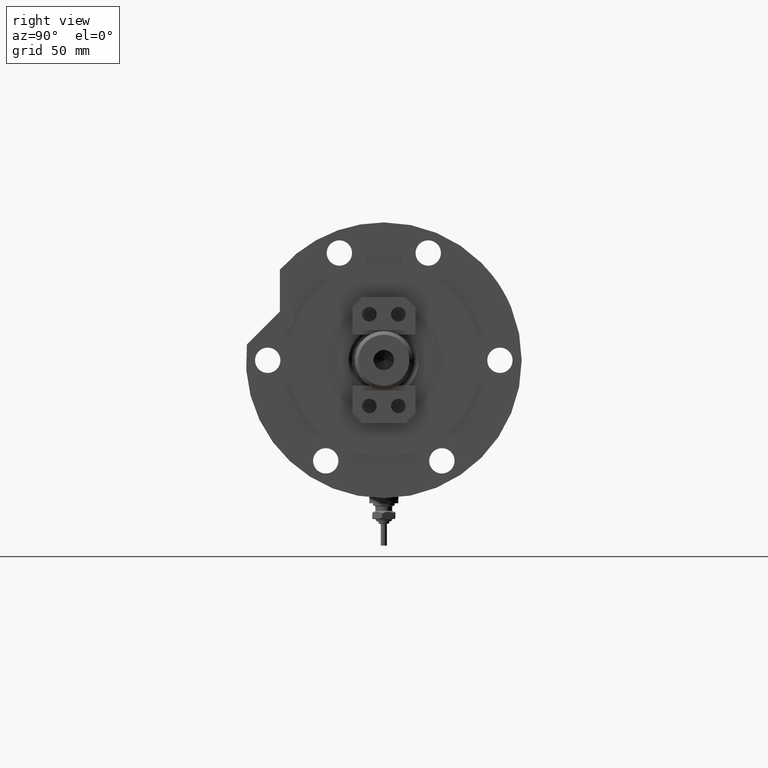
[diagram: clean part render]
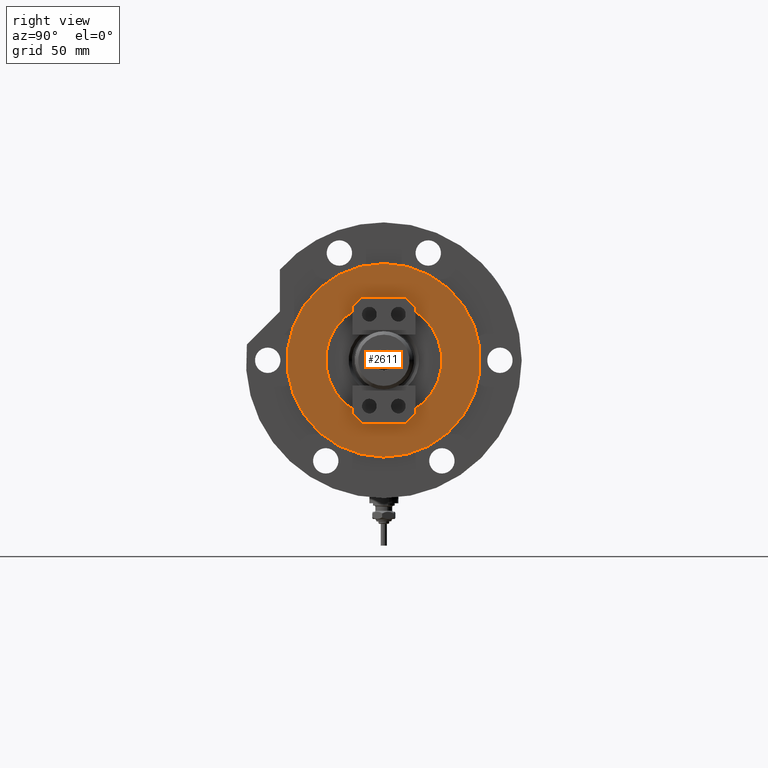
[diagram: same view with one face highlighted and labeled with its STEP entity id]
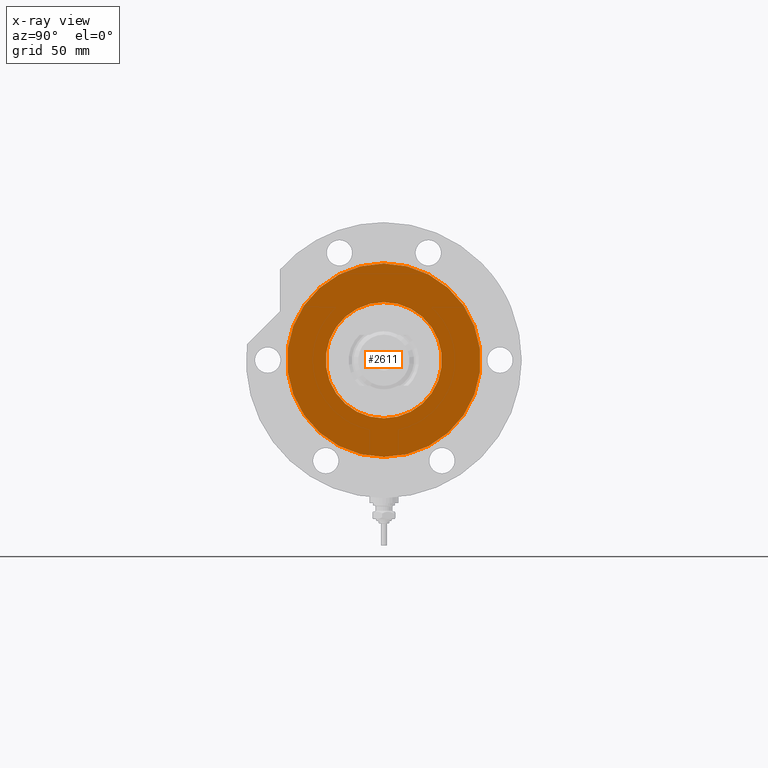
[diagram: x-ray of the same camera — body ghosted, the highlighted face saturated]
A machine part, right view. The second image highlights one B-rep face of the part: STEP entity #2611.
The next image is the same camera in x-ray: the body ghosted, the highlighted face saturated — about 0% of this face is hidden behind the body in this view.
In plain terms, the highlighted planar face has unit normal (1, 0, -0).
Its self-contained STEP definition (entity closure, byte-faithful):
#87 = CARTESIAN_POINT ( 'NONE',  ( 24.00000000000000355, 0.000000000000000000, 20.99999999999999645 ) ) ;
#97 = ORIENTED_EDGE ( 'NONE', *, *, #4778, .T. ) ;
#166 = FACE_OUTER_BOUND ( 'NONE', #6516, .T. ) ;
#261 = CIRCLE ( 'NONE', #2416, 24.00000000000000355 ) ;
#277 = DIRECTION ( 'NONE',  ( 1.000000000000000000, 0.000000000000000000, 0.000000000000000000 ) ) ;
#535 = DIRECTION ( 'NONE',  ( 1.000000000000000000, 0.000000000000000000, -0.000000000000000000 ) ) ;
#669 = AXIS2_PLACEMENT_3D ( 'NONE', #3022, #1764, #535 ) ;
#754 = CARTESIAN_POINT ( 'NONE',  ( 40.00000000000000000, 4.898587196589413026E-15, 20.99999999999999645 ) ) ;
#1043 = DIRECTION ( 'NONE',  ( 1.000000000000000000, 0.000000000000000000, 0.000000000000000000 ) ) ;
#1063 = CIRCLE ( 'NONE', #5730, 40.00000000000000000 ) ;
#1093 = EDGE_LOOP ( 'NONE', ( #8198, #6956 ) ) ;
#1122 = CARTESIAN_POINT ( 'NONE',  ( 0.000000000000000000, 0.000000000000000000, 20.99999999999999645 ) ) ;
#1486 = CIRCLE ( 'NONE', #7110, 40.00000000000000000 ) ;
#1664 = EDGE_CURVE ( 'NONE', #8274, #3441, #1063, .T. ) ;
#1764 = DIRECTION ( 'NONE',  ( 0.000000000000000000, 0.000000000000000000, 1.000000000000000000 ) ) ;
#1765 = DIRECTION ( 'NONE',  ( 1.000000000000000000, 0.000000000000000000, 0.000000000000000000 ) ) ;
#2073 = ORIENTED_EDGE ( 'NONE', *, *, #1664, .T. ) ;
#2416 = AXIS2_PLACEMENT_3D ( 'NONE', #1122, #3693, #1043 ) ;
#2547 = VERTEX_POINT ( 'NONE', #6594 ) ;
#2611 = ADVANCED_FACE ( 'NONE', ( #3577, #166 ), #6207, .T. ) ;
#2668 = EDGE_CURVE ( 'NONE', #2547, #3937, #261, .T. ) ;
#2817 = DIRECTION ( 'NONE',  ( 0.000000000000000000, 0.000000000000000000, 1.000000000000000000 ) ) ;
#3022 = CARTESIAN_POINT ( 'NONE',  ( 0.000000000000000000, 0.000000000000000000, 20.99999999999999645 ) ) ;
#3441 = VERTEX_POINT ( 'NONE', #7411 ) ;
#3577 = FACE_BOUND ( 'NONE', #1093, .T. ) ;
#3693 = DIRECTION ( 'NONE',  ( 0.000000000000000000, 0.000000000000000000, 1.000000000000000000 ) ) ;
#3937 = VERTEX_POINT ( 'NONE', #87 ) ;
#3958 = CARTESIAN_POINT ( 'NONE',  ( 0.000000000000000000, 0.000000000000000000, 20.99999999999999645 ) ) ;
#4332 = CARTESIAN_POINT ( 'NONE',  ( 0.000000000000000000, 0.000000000000000000, 20.99999999999999645 ) ) ;
#4690 = CIRCLE ( 'NONE', #5360, 24.00000000000000355 ) ;
#4778 = EDGE_CURVE ( 'NONE', #3441, #8274, #1486, .T. ) ;
#5016 = EDGE_CURVE ( 'NONE', #3937, #2547, #4690, .T. ) ;
#5360 = AXIS2_PLACEMENT_3D ( 'NONE', #3958, #2817, #7313 ) ;
#5399 = DIRECTION ( 'NONE',  ( 0.000000000000000000, 0.000000000000000000, 1.000000000000000000 ) ) ;
#5730 = AXIS2_PLACEMENT_3D ( 'NONE', #6824, #5399, #277 ) ;
#6207 = PLANE ( 'NONE',  #669 ) ;
#6246 = DIRECTION ( 'NONE',  ( 0.000000000000000000, 0.000000000000000000, 1.000000000000000000 ) ) ;
#6516 = EDGE_LOOP ( 'NONE', ( #97, #2073 ) ) ;
#6594 = CARTESIAN_POINT ( 'NONE',  ( -24.00000000000000355, 2.939152317953648289E-15, 20.99999999999999645 ) ) ;
#6824 = CARTESIAN_POINT ( 'NONE',  ( 0.000000000000000000, 0.000000000000000000, 20.99999999999999645 ) ) ;
#6956 = ORIENTED_EDGE ( 'NONE', *, *, #2668, .F. ) ;
#7110 = AXIS2_PLACEMENT_3D ( 'NONE', #4332, #6246, #1765 ) ;
#7313 = DIRECTION ( 'NONE',  ( 1.000000000000000000, 0.000000000000000000, 0.000000000000000000 ) ) ;
#7411 = CARTESIAN_POINT ( 'NONE',  ( -40.00000000000000000, 0.000000000000000000, 20.99999999999999645 ) ) ;
#8198 = ORIENTED_EDGE ( 'NONE', *, *, #5016, .F. ) ;
#8274 = VERTEX_POINT ( 'NONE', #754 ) ;